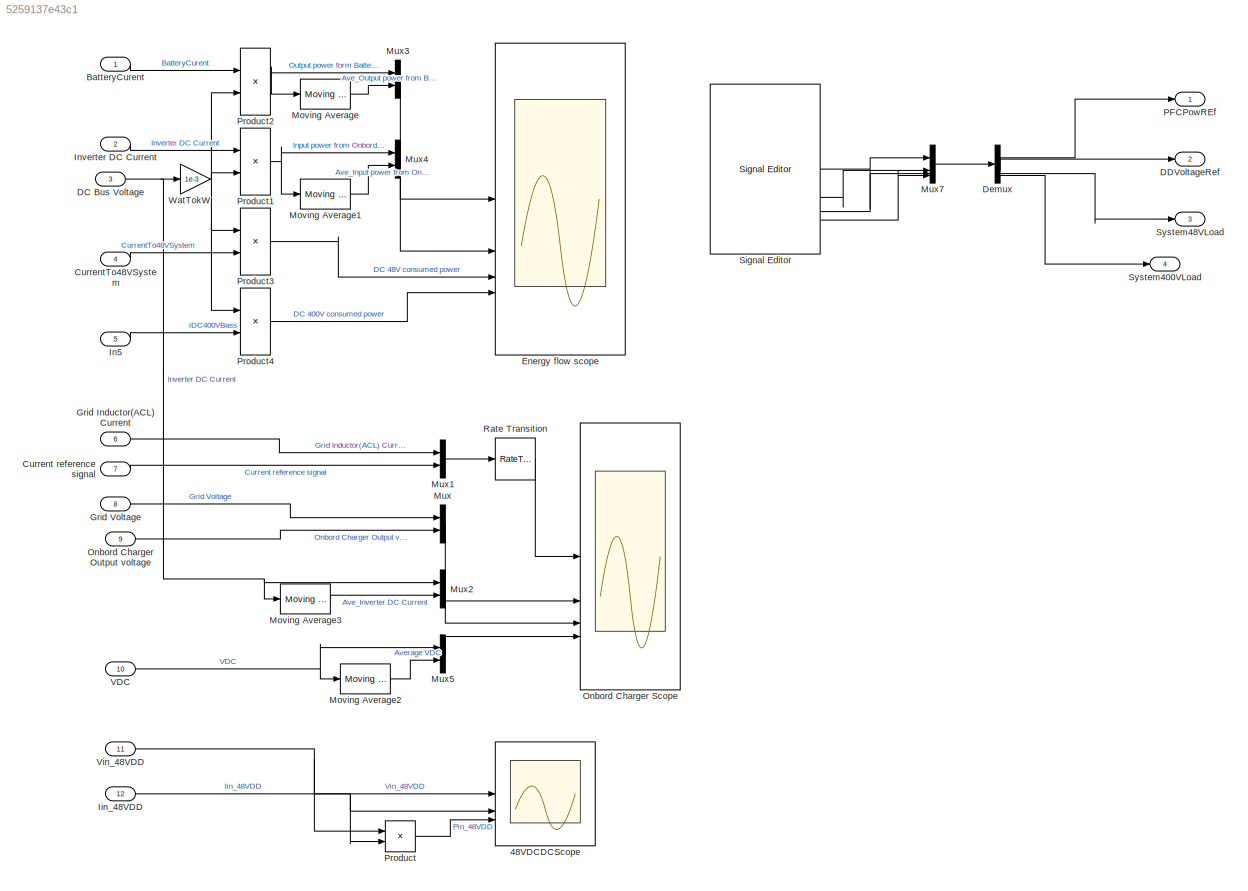
MODEL slx_5259137e43c1
KIND model
CONFIG AbsTol = 1e-3
CONFIG EnableMultiTasking = off
CONFIG FixedStep = auto
CONFIG MaxStep = 1e-5
CONFIG MinStep = auto
CONFIG RelTol = 1e-3
CONFIG SampleTimeConstraint = Unconstrained
CONFIG SolverName = ode23t
CONFIG StartTime = 0.0
CONFIG StopTime = 20
BLOCK [Scope] 48VDCDCScope
  Floating = off
  NumInputPorts = 3
  ScopeSpecificationString = Simulink.scopes.TimeScopeBlockCfg('CurrentConfiguration', extmgr.ConfigurationSet(extmgr.Configuration('Core','General UI',true),extmgr.Configuration('Core','Source UI',true),extmgr.Configuration('Sources','WiredSimulink',true,'DataLoggingVariableName','ScopeData1'),extmgr.Configuration('Visuals','Time Domain',true,'SerializedDisplays',{struct('MinYLimReal','47.67393','MaxYLimReal','50.25265','YLa...<+2915ch>
BLOCK [Inport] BatteryCurent
  OutDataTypeStr = double
  PortDimensions = 1
  SampleTime = 0
  SamplingMode = Sample based
  SignalType = real
BLOCK [Inport] Current reference signal
  OutDataTypeStr = double
  Port = 7
  PortDimensions = 1
  SampleTime = [0,1]
  SamplingMode = Sample based
  SignalType = real
BLOCK [Inport] CurrentTo48VSystem
  OutDataTypeStr = double
  Port = 4
  PortDimensions = 1
  SampleTime = 0
  SamplingMode = Sample based
  SignalType = real
BLOCK [Inport] DC Bus Voltage
  OutDataTypeStr = double
  Port = 3
  PortDimensions = 1
  SampleTime = 0
  SamplingMode = Sample based
  SignalType = real
BLOCK [Outport] DDVoltageRef
  OutDataTypeStr = double
  Port = 2
  PortDimensions = 1
  SampleTime = 0
  SamplingMode = Sample based
  SignalType = real
BLOCK [Demux] Demux
BLOCK [Scope] Energy flow scope
  Floating = off
  NumInputPorts = 4
  ScopeSpecificationString = Simulink.scopes.TimeScopeBlockCfg('CurrentConfiguration', extmgr.ConfigurationSet(extmgr.Configuration('Core','General UI',true),extmgr.Configuration('Core','Source UI',true),extmgr.Configuration('Sources','WiredSimulink',true,'DataLoggingVariableName','ScopeData2'),extmgr.Configuration('Visuals','Time Domain',true,'SerializedDisplays',{struct('MinYLimReal','-6.12494','MaxYLimReal','2.47978','YLab...<+3667ch>
BLOCK [Inport] Grid Inductor(ACL) Current
  OutDataTypeStr = double
  Port = 6
  PortDimensions = 1
  SampleTime = 0
  SamplingMode = Sample based
  SignalType = real
BLOCK [Inport] Grid Voltage
  OutDataTypeStr = double
  Port = 8
  PortDimensions = 1
  SampleTime = 0
  SamplingMode = Sample based
  SignalType = real
BLOCK [Inport] Iin_48VDD
  OutDataTypeStr = double
  Port = 12
  PortDimensions = 1
  SampleTime = 0
  SamplingMode = Sample based
  SignalType = real
BLOCK [Inport] In5
  OutDataTypeStr = double
  Port = 5
  PortDimensions = 1
  SampleTime = 0
  SamplingMode = Sample based
  SignalType = real
BLOCK [Inport] Inverter DC Current
  OutDataTypeStr = double
  Port = 2
  PortDimensions = 1
  SampleTime = 0
  SamplingMode = Sample based
  SignalType = real
BLOCK [Reference] Moving Average  REF=eeGeneralControl/Moving Average
  SourceBlock = eeGeneralControl/Moving Average
  SourceType = Moving Average
BLOCK [Reference] Moving Average1  REF=eeGeneralControl/Moving Average
  SourceBlock = eeGeneralControl/Moving Average
  SourceType = Moving Average
BLOCK [Reference] Moving Average2  REF=eeGeneralControl/Moving Average
  SourceBlock = eeGeneralControl/Moving Average
  SourceType = Moving Average
BLOCK [Reference] Moving Average3  REF=eeGeneralControl/Moving Average
  SourceBlock = eeGeneralControl/Moving Average
  SourceType = Moving Average
BLOCK [Mux] Mux
  DisplayOption = bar
  Inputs = 2
BLOCK [Mux] Mux1
  DisplayOption = bar
  Inputs = 2
BLOCK [Mux] Mux2
  DisplayOption = bar
  Inputs = 2
BLOCK [Mux] Mux3
  DisplayOption = bar
  Inputs = 2
BLOCK [Mux] Mux4
  DisplayOption = bar
  Inputs = 2
BLOCK [Mux] Mux5
  DisplayOption = bar
  Inputs = 2
BLOCK [Mux] Mux7
  DisplayOption = bar
BLOCK [Inport] Onbord Charger Output voltage
  OutDataTypeStr = double
  Port = 9
  PortDimensions = 1
  SampleTime = 0
  SamplingMode = Sample based
  SignalType = real
BLOCK [Scope] Onbord Charger Scope
  Floating = off
  NumInputPorts = 4
  ScopeSpecificationString = Simulink.scopes.TimeScopeBlockCfg('CurrentConfiguration', extmgr.ConfigurationSet(extmgr.Configuration('Core','General UI',true),extmgr.Configuration('Core','Source UI',true),extmgr.Configuration('Sources','WiredSimulink',true),extmgr.Configuration('Visuals','Time Domain',true,'SerializedDisplays',{struct('MinYLimReal','-47.36568','MaxYLimReal','47.36568','YLabelReal','','MinYLimMag','0.00000','Ma...<+3710ch>
BLOCK [Outport] PFCPowREf
  OutDataTypeStr = double
  PortDimensions = 1
  SampleTime = 0
  SamplingMode = Sample based
  SignalType = real
BLOCK [Product] Product
BLOCK [Product] Product1
BLOCK [Product] Product2
BLOCK [Product] Product3
BLOCK [Product] Product4
BLOCK [RateTransition] Rate Transition
BLOCK [Reference] Signal Editor  REF=SignalEditorBlockLib/Signal Editor
  SourceBlock = SignalEditorBlockLib/Signal Editor
  SourceType = SignalEditor
  UserDataPersistent = on
BLOCK [Outport] System400VLoad
  Port = 4
BLOCK [Outport] System48VLoad
  Port = 3
BLOCK [Inport] VDC
  OutDataTypeStr = double
  Port = 10
  PortDimensions = 1
  SampleTime = 0
  SamplingMode = Sample based
  SignalType = real
BLOCK [Inport] Vin_48VDD
  OutDataTypeStr = double
  Port = 11
  PortDimensions = 1
  SampleTime = 0
  SamplingMode = Sample based
  SignalType = real
BLOCK [Gain] WatTokW
  Gain = 1e-3
LINE BatteryCurent:1 -> Product2:1
LINE Current reference signal:1 -> Mux1:2
LINE CurrentTo48VSystem:1 -> Product3:2
NET DC Bus Voltage:1 -> Moving Average3:1, Mux2:1, WatTokW:1
LINE Demux:1 -> PFCPowREf:1
LINE Demux:2 -> DDVoltageRef:1
LINE Demux:3 -> System48VLoad:1
LINE Demux:4 -> System400VLoad:1
LINE Grid Inductor(ACL) Current:1 -> Mux1:1
LINE Grid Voltage:1 -> Mux:1
NET Iin_48VDD:1 -> 48VDCDCScope:2, Product:2
LINE In5:1 -> Product4:2
LINE Inverter DC Current:1 -> Product1:1
LINE Moving Average1:1 -> Mux4:2
LINE Moving Average2:1 -> Mux5:2
LINE Moving Average3:1 -> Mux2:2
LINE Moving Average:1 -> Mux3:2
LINE Mux1:1 -> Rate Transition:1
LINE Mux2:1 -> Onbord Charger Scope:3
LINE Mux3:1 -> Energy flow scope:1
LINE Mux4:1 -> Energy flow scope:2
LINE Mux5:1 -> Onbord Charger Scope:4
LINE Mux7:1 -> Demux:1
LINE Mux:1 -> Onbord Charger Scope:2
LINE Onbord Charger Output voltage:1 -> Mux:2
NET Product1:1 -> Moving Average1:1, Mux4:1
NET Product2:1 -> Moving Average:1, Mux3:1
LINE Product3:1 -> Energy flow scope:3
LINE Product4:1 -> Energy flow scope:4
LINE Product:1 -> 48VDCDCScope:3
LINE Rate Transition:1 -> Onbord Charger Scope:1
LINE Signal Editor:1 -> Mux7:1
LINE Signal Editor:2 -> Mux7:2
LINE Signal Editor:3 -> Mux7:3
LINE Signal Editor:4 -> Mux7:4
NET VDC:1 -> Moving Average2:1, Mux5:1
NET Vin_48VDD:1 -> 48VDCDCScope:1, Product:1
NET WatTokW:1 -> Product1:2, Product2:2, Product3:1, Product4:1
note: NET lines group one-source signal fan-out (src -> all destinations, sorted); 1:1 wires keep LINE
